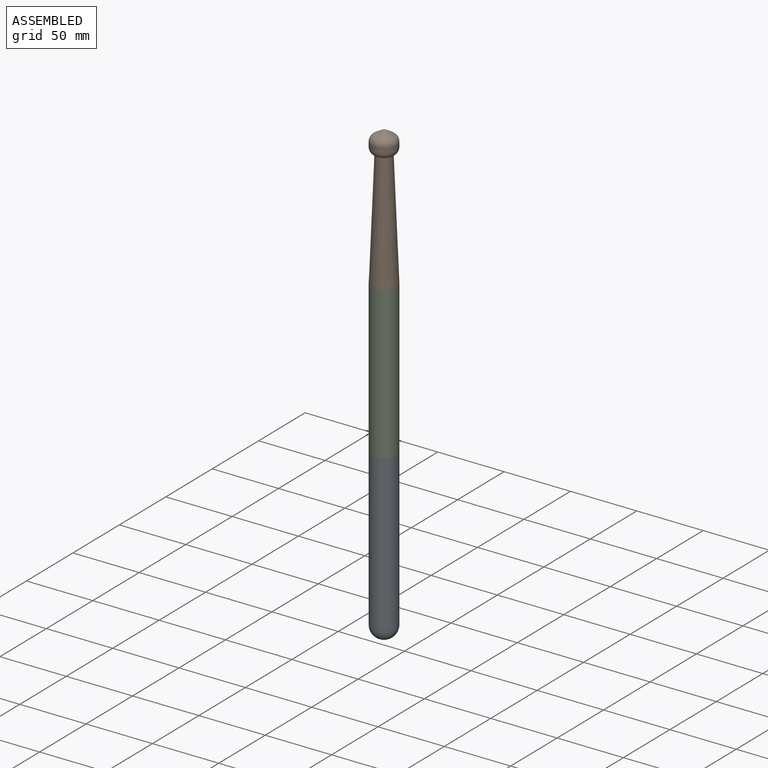
[diagram: assembled view]
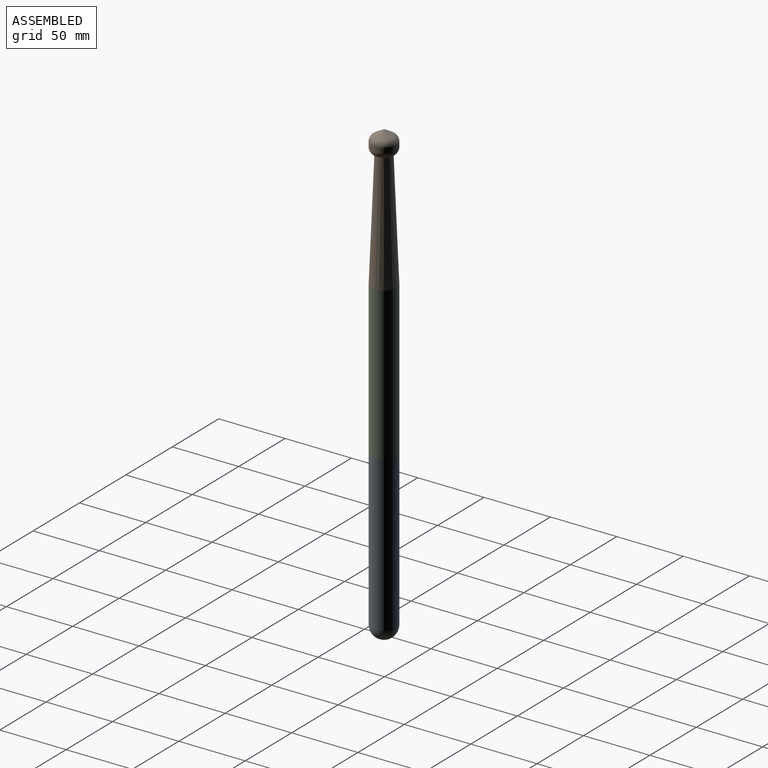
[diagram: assembled view, second angle]
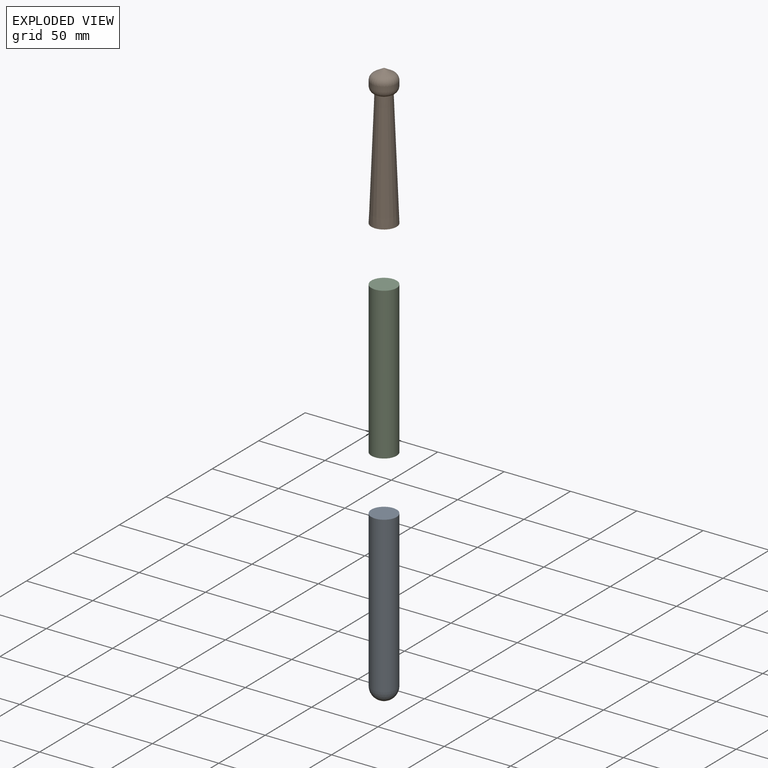
[diagram: exploded view]
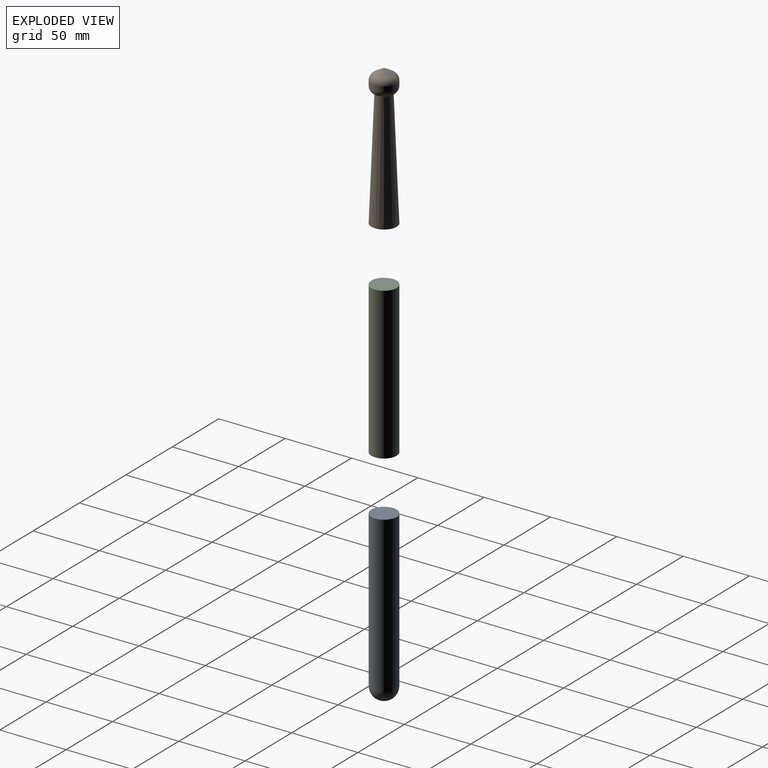
[diagram: exploded view, second angle]
ASSEMBLY  parts=3 mates=2
PART A: 3 faces, bbox 19.1x19.1x127 mm
  f0: cylinder r=9.53mm len=117.48mm, axis (0,0,-1), area 7030.6mm2, adj f1,f2
  f1: plane 19.05x19.05mm, normal (0,0,-1), area 285mm2, adj f0
  f2: sphere r=9.53mm, area 570mm2, adj f0
PART B: 7 faces, bbox 19.1x19.1x105.4 mm
  f0: plane 19.05x19.05mm, normal (0,0,-1), area 285mm2, adj f1
  f1: cone r=5.95mm half-angle=2.3deg, axis (0,0,-1), area 4326.7mm2, adj f0,f5
  f2: cylinder r=9.53mm len=19.05mm, axis (0,0,-1), area 215.1mm2, adj f5,f6
  f3: plane 1.27x1.27mm, normal (0,0,1), area 1.3mm2, adj f4
  f4: cone r=0.64mm half-angle=60deg, axis (0,0,-1), area 175.5mm2, adj f3,f6
  f5: torus R=4.45mm, axis (0,0,-1), area 334.9mm2, adj f1,f2
  f6: torus R=4.45mm, axis (0,0,1), area 289mm2, adj f2,f4
PART C: 3 faces, bbox 19.1x19.1x114.3 mm
  f0: cylinder r=9.53mm len=114.3mm, axis (0,0,-1), area 6840.6mm2, adj f1,f2
  f1: plane 19.05x19.05mm, normal (0,0,1), area 285mm2, adj f0
  f2: plane 19.05x19.05mm, normal (0,0,-1), area 285mm2, adj f0
PLACE A rot(axis=(1,0,0),180deg) t=(36.78,75.39,24.09)mm
PLACE B t=(36.78,75.39,138.39)mm
PLACE C t=(36.78,75.39,24.09)mm
MATE fastened B.f1 <-> C.f0  axis (0,0,1) through (36.78,75.39,138.39)mm
MATE fastened A.f0 <-> C.f0  axis (0,0,1) through (36.78,75.39,24.09)mm
